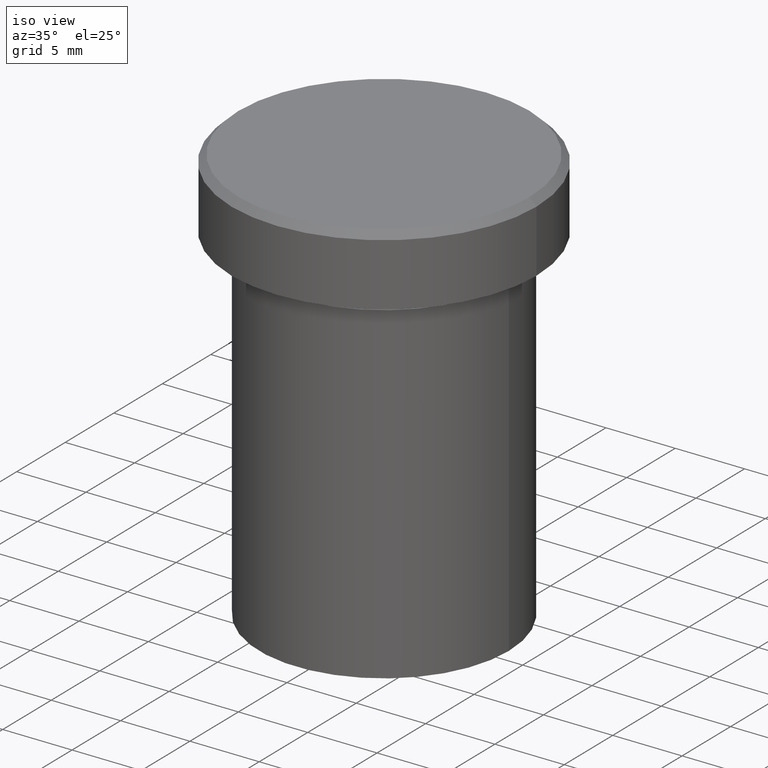
[diagram: clean part render]
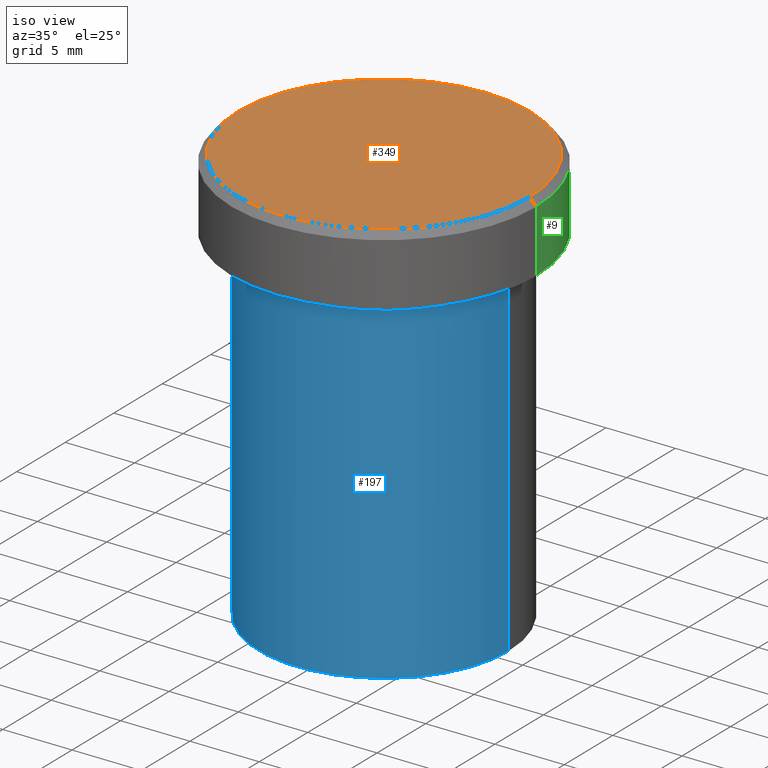
[diagram: same view with three faces highlighted in distinct colors, each labeled with its STEP entity id]
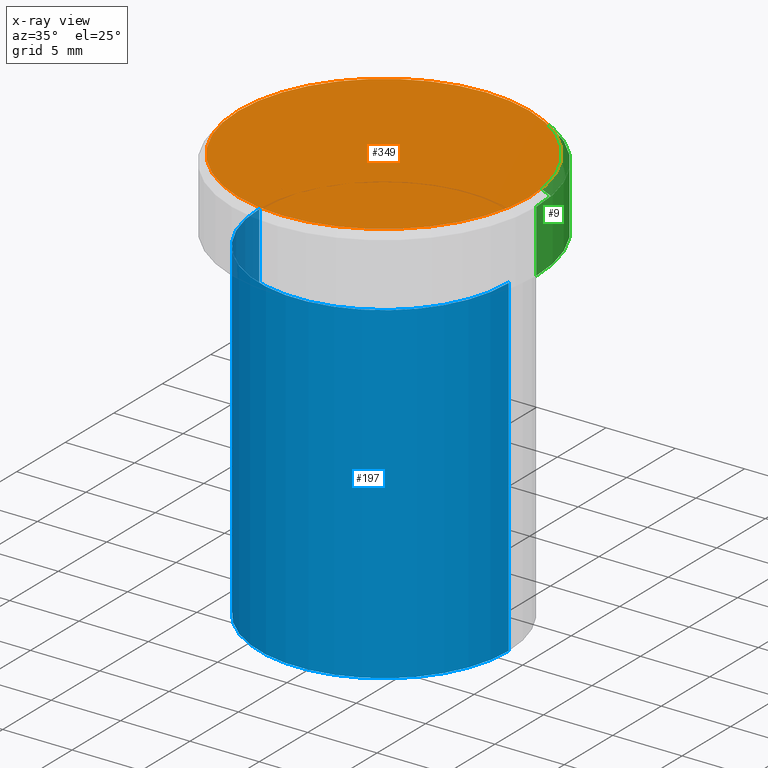
[diagram: x-ray of the same camera — body ghosted, the three highlighted faces saturated]
A machine part, iso view with three faces highlighted in distinct colors.
The next image is the same camera in x-ray (body ghosted, the three faces saturated) — at least one of them is partly hidden behind the body in this view.
Their STEP definitions:

[orange] entity #349 — the highlighted planar face has unit normal (0, -0, 1).
#15 = DIRECTION ( 'NONE',  ( 1.000000000000000000, 0.000000000000000000, 0.000000000000000000 ) ) ;
#35 = VERTEX_POINT ( 'NONE', #335 ) ;
#90 = FACE_OUTER_BOUND ( 'NONE', #287, .T. ) ;
#109 = CARTESIAN_POINT ( 'NONE',  ( 0.000000000000000000, 0.000000000000000000, 0.000000000000000000 ) ) ;
#114 = EDGE_CURVE ( 'NONE', #219, #35, #221, .T. ) ;
#116 = AXIS2_PLACEMENT_3D ( 'NONE', #376, #342, #383 ) ;
#134 = DIRECTION ( 'NONE',  ( 0.000000000000000000, -0.000000000000000000, 1.000000000000000000 ) ) ;
#140 = CARTESIAN_POINT ( 'NONE',  ( -10.49999999999999822, 0.000000000000000000, 0.000000000000000000 ) ) ;
#145 = CARTESIAN_POINT ( 'NONE',  ( 0.000000000000000000, 0.000000000000000000, 0.000000000000000000 ) ) ;
#165 = CIRCLE ( 'NONE', #215, 10.49999999999999822 ) ;
#182 = EDGE_CURVE ( 'NONE', #35, #219, #165, .T. ) ;
#215 = AXIS2_PLACEMENT_3D ( 'NONE', #145, #239, #308 ) ;
#219 = VERTEX_POINT ( 'NONE', #140 ) ;
#221 = CIRCLE ( 'NONE', #116, 10.49999999999999822 ) ;
#239 = DIRECTION ( 'NONE',  ( -0.000000000000000000, -0.000000000000000000, 1.000000000000000000 ) ) ;
#262 = ORIENTED_EDGE ( 'NONE', *, *, #114, .T. ) ;
#287 = EDGE_LOOP ( 'NONE', ( #262, #378 ) ) ;
#308 = DIRECTION ( 'NONE',  ( 1.000000000000000000, 0.000000000000000000, 0.000000000000000000 ) ) ;
#335 = CARTESIAN_POINT ( 'NONE',  ( 10.49999999999999822, 1.316495309083404420E-15, 0.000000000000000000 ) ) ;
#342 = DIRECTION ( 'NONE',  ( -0.000000000000000000, -0.000000000000000000, 1.000000000000000000 ) ) ;
#349 = ADVANCED_FACE ( 'NONE', ( #90 ), #385, .T. ) ;
#350 = AXIS2_PLACEMENT_3D ( 'NONE', #109, #134, #15 ) ;
#376 = CARTESIAN_POINT ( 'NONE',  ( 0.000000000000000000, 0.000000000000000000, 0.000000000000000000 ) ) ;
#378 = ORIENTED_EDGE ( 'NONE', *, *, #182, .T. ) ;
#383 = DIRECTION ( 'NONE',  ( 1.000000000000000000, 0.000000000000000000, 0.000000000000000000 ) ) ;
#385 = PLANE ( 'NONE',  #350 ) ;

[blue] entity #197 — the highlighted cylindrical surface (partial cylindrical patch) has radius 9 mm, axis along (-0, -0, 1).
#10 = ORIENTED_EDGE ( 'NONE', *, *, #102, .T. ) ;
#12 = LINE ( 'NONE', #354, #38 ) ;
#19 = DIRECTION ( 'NONE',  ( -0.000000000000000000, -0.000000000000000000, 1.000000000000000000 ) ) ;
#23 = DIRECTION ( 'NONE',  ( 1.000000000000000000, 0.000000000000000000, 0.000000000000000000 ) ) ;
#32 = AXIS2_PLACEMENT_3D ( 'NONE', #196, #256, #200 ) ;
#38 = VECTOR ( 'NONE', #19, 1000.000000000000000 ) ;
#40 = EDGE_CURVE ( 'NONE', #407, #46, #312, .T. ) ;
#46 = VERTEX_POINT ( 'NONE', #180 ) ;
#59 = ORIENTED_EDGE ( 'NONE', *, *, #40, .T. ) ;
#64 = CIRCLE ( 'NONE', #401, 9.000000000000000000 ) ;
#94 = CARTESIAN_POINT ( 'NONE',  ( 0.000000000000000000, 0.000000000000000000, -6.000000000000000000 ) ) ;
#102 = EDGE_CURVE ( 'NONE', #46, #299, #104, .T. ) ;
#104 = LINE ( 'NONE', #162, #195 ) ;
#118 = CARTESIAN_POINT ( 'NONE',  ( 0.000000000000000000, 0.000000000000000000, -30.00000000000000000 ) ) ;
#131 = EDGE_CURVE ( 'NONE', #407, #303, #12, .T. ) ;
#147 = EDGE_CURVE ( 'NONE', #303, #299, #64, .T. ) ;
#162 = CARTESIAN_POINT ( 'NONE',  ( 9.000000000000000000, 0.000000000000000000, 0.000000000000000000 ) ) ;
#180 = CARTESIAN_POINT ( 'NONE',  ( 9.000000000000000000, 0.000000000000000000, -30.00000000000000000 ) ) ;
#185 = CARTESIAN_POINT ( 'NONE',  ( 9.000000000000000000, 0.000000000000000000, -6.000000000000000000 ) ) ;
#195 = VECTOR ( 'NONE', #403, 1000.000000000000000 ) ;
#196 = CARTESIAN_POINT ( 'NONE',  ( 0.000000000000000000, 0.000000000000000000, 0.000000000000000000 ) ) ;
#197 = ADVANCED_FACE ( 'NONE', ( #230 ), #294, .T. ) ;
#200 = DIRECTION ( 'NONE',  ( 1.000000000000000000, 0.000000000000000000, 0.000000000000000000 ) ) ;
#201 = DIRECTION ( 'NONE',  ( -0.000000000000000000, -0.000000000000000000, 1.000000000000000000 ) ) ;
#230 = FACE_OUTER_BOUND ( 'NONE', #315, .T. ) ;
#246 = AXIS2_PLACEMENT_3D ( 'NONE', #118, #201, #330 ) ;
#256 = DIRECTION ( 'NONE',  ( -0.000000000000000000, -0.000000000000000000, 1.000000000000000000 ) ) ;
#267 = DIRECTION ( 'NONE',  ( -0.000000000000000000, -0.000000000000000000, 1.000000000000000000 ) ) ;
#278 = CARTESIAN_POINT ( 'NONE',  ( -9.000000000000000000, 1.102182119232617714E-15, -6.000000000000000000 ) ) ;
#283 = CARTESIAN_POINT ( 'NONE',  ( -9.000000000000000000, 1.102182119232617714E-15, -30.00000000000000000 ) ) ;
#294 = CYLINDRICAL_SURFACE ( 'NONE', #32, 9.000000000000000000 ) ;
#299 = VERTEX_POINT ( 'NONE', #185 ) ;
#303 = VERTEX_POINT ( 'NONE', #278 ) ;
#312 = CIRCLE ( 'NONE', #246, 9.000000000000000000 ) ;
#315 = EDGE_LOOP ( 'NONE', ( #347, #59, #10, #377 ) ) ;
#330 = DIRECTION ( 'NONE',  ( 1.000000000000000000, 0.000000000000000000, 0.000000000000000000 ) ) ;
#347 = ORIENTED_EDGE ( 'NONE', *, *, #131, .F. ) ;
#354 = CARTESIAN_POINT ( 'NONE',  ( -9.000000000000000000, 1.102182119232617714E-15, 0.000000000000000000 ) ) ;
#377 = ORIENTED_EDGE ( 'NONE', *, *, #147, .F. ) ;
#401 = AXIS2_PLACEMENT_3D ( 'NONE', #94, #267, #23 ) ;
#403 = DIRECTION ( 'NONE',  ( -0.000000000000000000, -0.000000000000000000, 1.000000000000000000 ) ) ;
#407 = VERTEX_POINT ( 'NONE', #283 ) ;

[green] entity #9 — the highlighted cylindrical surface (partial cylindrical patch) has radius 11 mm, axis along (-0, -0, 1).
#3 = EDGE_CURVE ( 'NONE', #217, #158, #297, .T. ) ;
#9 = ADVANCED_FACE ( 'NONE', ( #95 ), #268, .T. ) ;
#22 = CARTESIAN_POINT ( 'NONE',  ( -11.00000000000000000, 1.347111479062088405E-15, -5.000000000000000000 ) ) ;
#47 = CARTESIAN_POINT ( 'NONE',  ( 11.00000000000000000, 0.000000000000000000, 0.000000000000000000 ) ) ;
#50 = CARTESIAN_POINT ( 'NONE',  ( 0.000000000000000000, 0.000000000000000000, -5.000000000000000000 ) ) ;
#61 = ORIENTED_EDGE ( 'NONE', *, *, #247, .T. ) ;
#70 = CARTESIAN_POINT ( 'NONE',  ( -11.00000000000000000, 1.347111479062088405E-15, -0.5000000000000004441 ) ) ;
#74 = CARTESIAN_POINT ( 'NONE',  ( 11.00000000000000000, 0.000000000000000000, -0.5000000000000004441 ) ) ;
#86 = DIRECTION ( 'NONE',  ( -0.000000000000000000, -0.000000000000000000, 1.000000000000000000 ) ) ;
#89 = CIRCLE ( 'NONE', #305, 11.00000000000000000 ) ;
#95 = FACE_OUTER_BOUND ( 'NONE', #270, .T. ) ;
#108 = VERTEX_POINT ( 'NONE', #74 ) ;
#120 = VECTOR ( 'NONE', #231, 1000.000000000000000 ) ;
#125 = ORIENTED_EDGE ( 'NONE', *, *, #370, .F. ) ;
#158 = VERTEX_POINT ( 'NONE', #70 ) ;
#184 = CARTESIAN_POINT ( 'NONE',  ( 0.000000000000000000, 0.000000000000000000, 0.000000000000000000 ) ) ;
#210 = DIRECTION ( 'NONE',  ( 1.000000000000000000, 0.000000000000000000, 0.000000000000000000 ) ) ;
#214 = VERTEX_POINT ( 'NONE', #357 ) ;
#217 = VERTEX_POINT ( 'NONE', #22 ) ;
#231 = DIRECTION ( 'NONE',  ( -0.000000000000000000, -0.000000000000000000, 1.000000000000000000 ) ) ;
#232 = DIRECTION ( 'NONE',  ( -0.000000000000000000, -0.000000000000000000, 1.000000000000000000 ) ) ;
#247 = EDGE_CURVE ( 'NONE', #214, #217, #89, .T. ) ;
#257 = AXIS2_PLACEMENT_3D ( 'NONE', #307, #341, #210 ) ;
#266 = DIRECTION ( 'NONE',  ( 1.000000000000000000, 0.000000000000000000, 0.000000000000000000 ) ) ;
#268 = CYLINDRICAL_SURFACE ( 'NONE', #394, 11.00000000000000000 ) ;
#270 = EDGE_LOOP ( 'NONE', ( #61, #371, #326, #125 ) ) ;
#276 = DIRECTION ( 'NONE',  ( 1.000000000000000000, 0.000000000000000000, 0.000000000000000000 ) ) ;
#286 = CIRCLE ( 'NONE', #257, 11.00000000000000000 ) ;
#297 = LINE ( 'NONE', #362, #375 ) ;
#305 = AXIS2_PLACEMENT_3D ( 'NONE', #50, #86, #276 ) ;
#307 = CARTESIAN_POINT ( 'NONE',  ( 0.000000000000000000, 0.000000000000000000, -0.5000000000000004441 ) ) ;
#326 = ORIENTED_EDGE ( 'NONE', *, *, #404, .T. ) ;
#341 = DIRECTION ( 'NONE',  ( 0.000000000000000000, 0.000000000000000000, -1.000000000000000000 ) ) ;
#357 = CARTESIAN_POINT ( 'NONE',  ( 11.00000000000000000, 0.000000000000000000, -5.000000000000000000 ) ) ;
#360 = DIRECTION ( 'NONE',  ( -0.000000000000000000, -0.000000000000000000, 1.000000000000000000 ) ) ;
#362 = CARTESIAN_POINT ( 'NONE',  ( -11.00000000000000000, 1.347111479062088405E-15, 0.000000000000000000 ) ) ;
#370 = EDGE_CURVE ( 'NONE', #214, #108, #389, .T. ) ;
#371 = ORIENTED_EDGE ( 'NONE', *, *, #3, .T. ) ;
#375 = VECTOR ( 'NONE', #232, 1000.000000000000000 ) ;
#389 = LINE ( 'NONE', #47, #120 ) ;
#394 = AXIS2_PLACEMENT_3D ( 'NONE', #184, #360, #266 ) ;
#404 = EDGE_CURVE ( 'NONE', #158, #108, #286, .T. ) ;